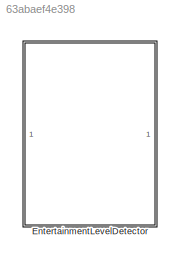
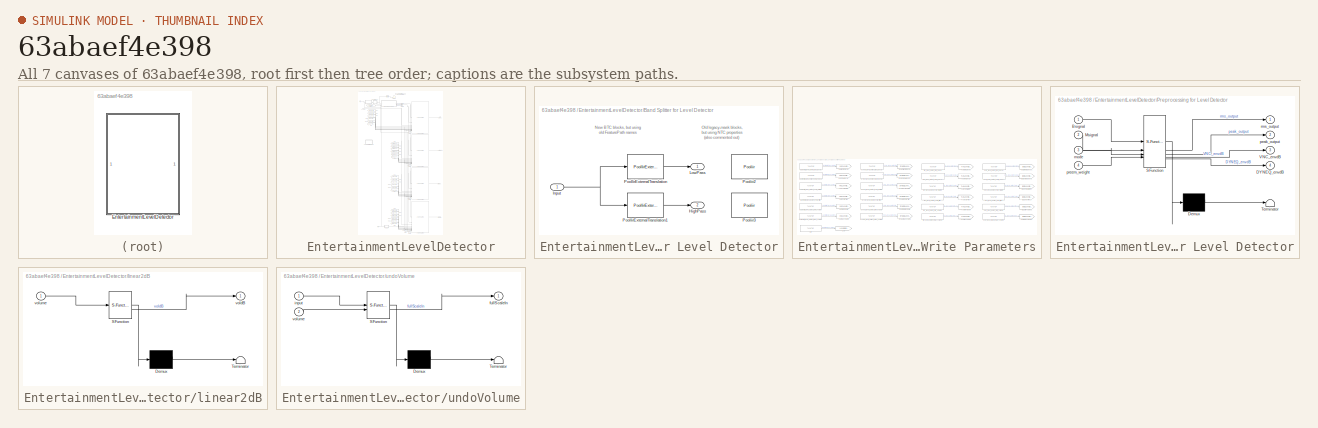
[diagram: thumbnail index - all 7 canvases of the model, root first then tree order]
MODEL slx_63abaef4e398
KIND library
CONFIG AbsTol = auto
CONFIG EnableMultiTasking = off
CONFIG FixedStep = auto
CONFIG MaxStep = auto
CONFIG MinStep = auto
CONFIG RelTol = 1e-3
CONFIG SampleTimeConstraint = Unconstrained
CONFIG SolverName = VariableStepAuto
CONFIG StartTime = 0.0
CONFIG StopTime = 10.0
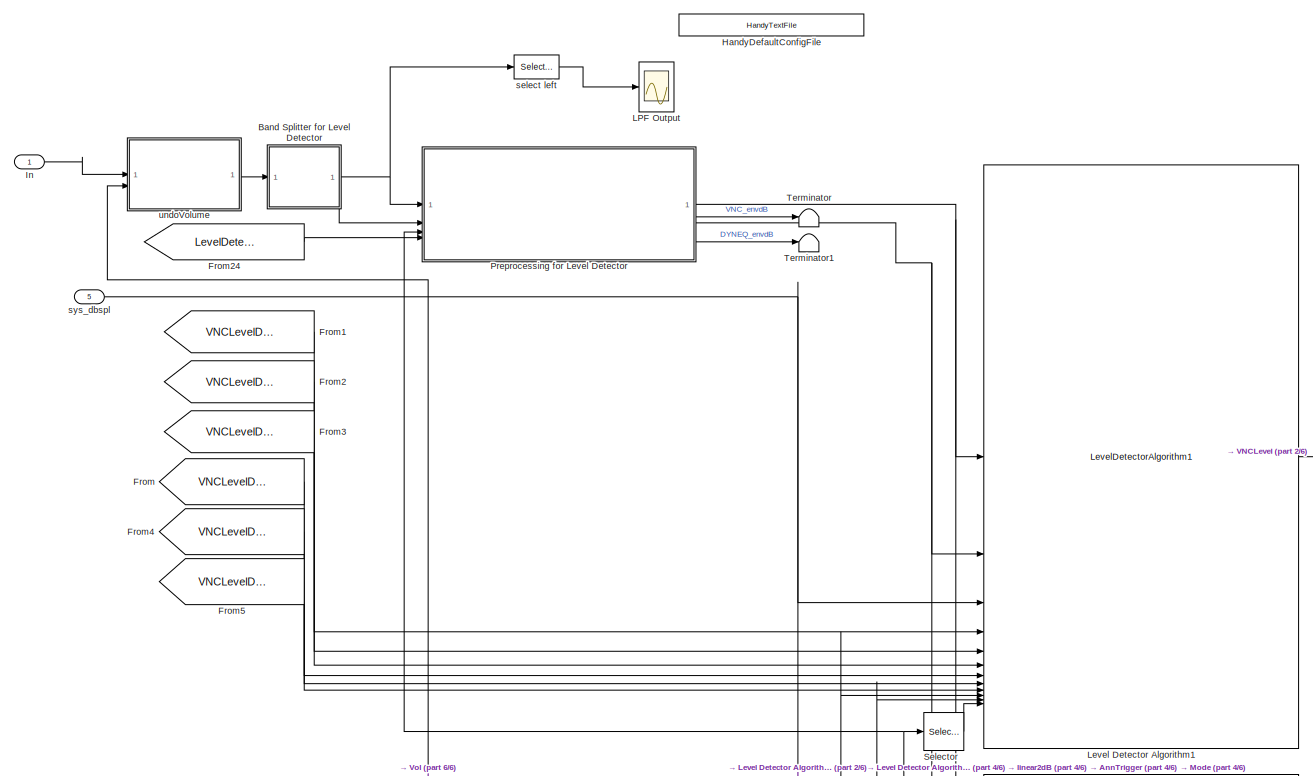
[diagram: EntertainmentLevelDetector - part 1/6, full width, top band]
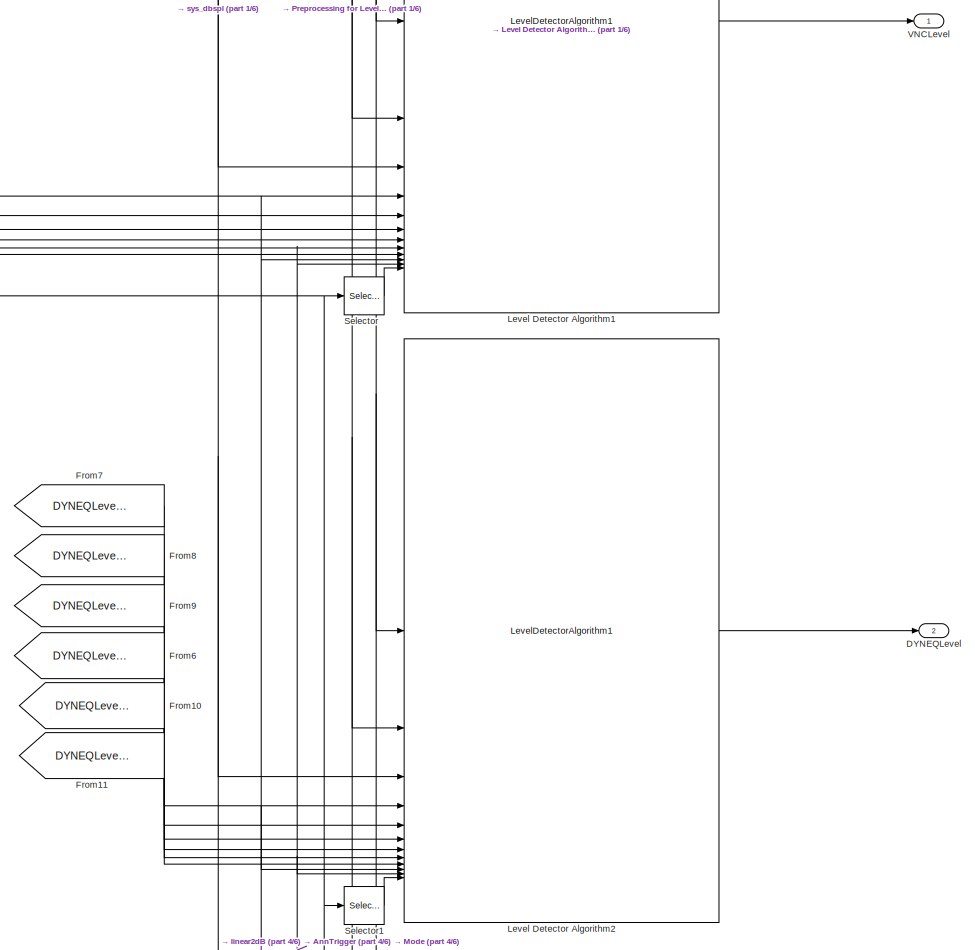
[diagram: EntertainmentLevelDetector - part 2/6, middle right region]
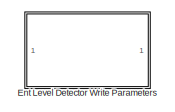
[diagram: EntertainmentLevelDetector - part 3/6, middle left region]
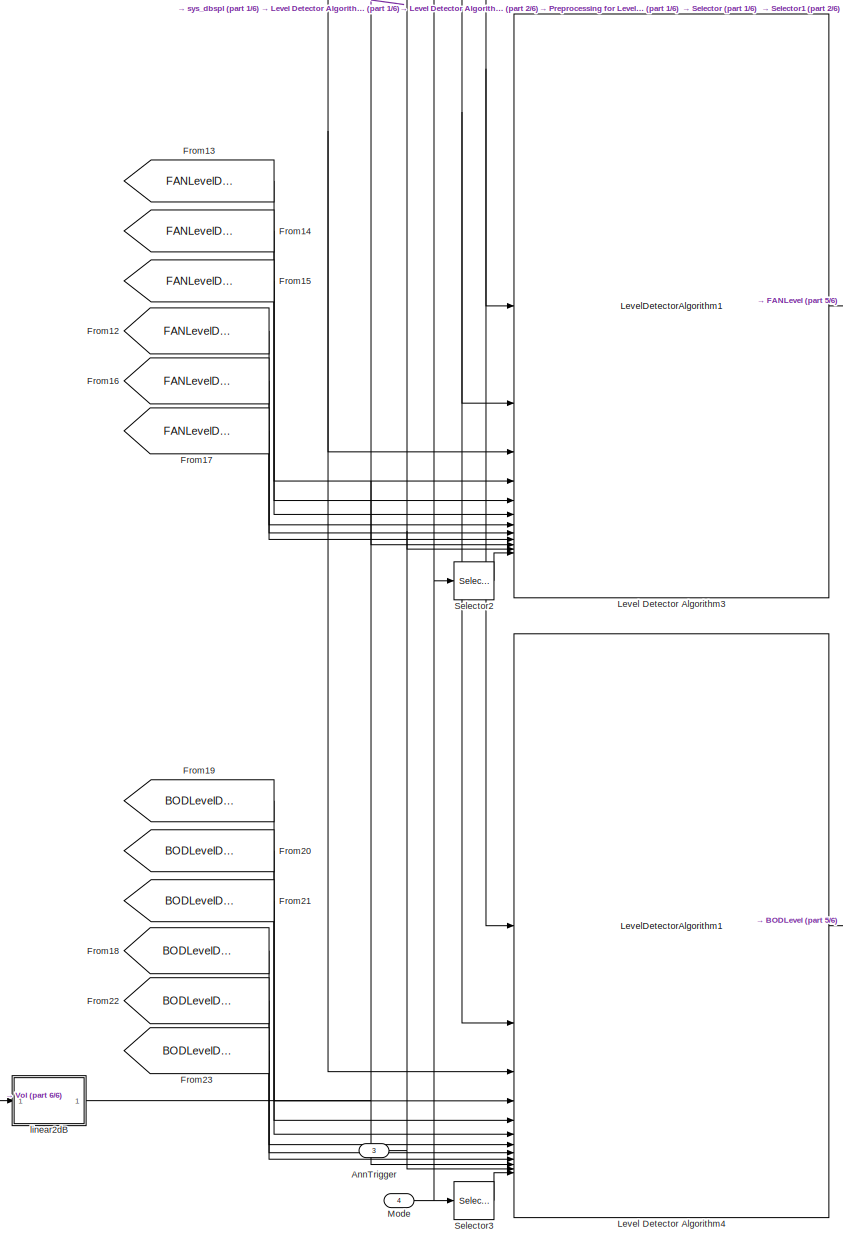
[diagram: EntertainmentLevelDetector - part 4/6, bottom center region]
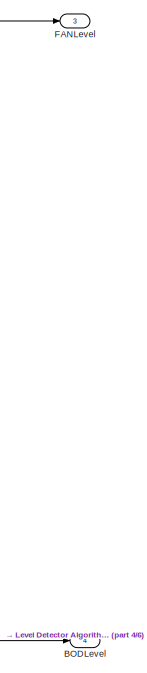
[diagram: EntertainmentLevelDetector - part 5/6, bottom right region]
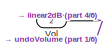
[diagram: EntertainmentLevelDetector - part 6/6, bottom left region]
BLOCK [SubSystem] EntertainmentLevelDetector
BLOCK [Inport] EntertainmentLevelDetector/AnnTrigger
  Port = 3
BLOCK [Outport] EntertainmentLevelDetector/BODLevel
  Port = 4
  VectorParamsAs1DForOutWhenUnconnected = off
BLOCK [SubSystem] EntertainmentLevelDetector/Band Splitter for Level Detector
BLOCK [Outport] EntertainmentLevelDetector/Band Splitter for Level Detector/HighPass
  Port = 2
  VectorParamsAs1DForOutWhenUnconnected = off
BLOCK [Inport] EntertainmentLevelDetector/Band Splitter for Level Detector/Input
BLOCK [Outport] EntertainmentLevelDetector/Band Splitter for Level Detector/LowPass
  VectorParamsAs1DForOutWhenUnconnected = off
BLOCK [Reference] EntertainmentLevelDetector/Band Splitter for Level Detector/PoolIirExternalTranslation  REF=PoolIirBtc/PoolIirExternalTranslation
  SourceBlock = PoolIirBtc/PoolIirExternalTranslation
  SourceProductName = Bose Blocklib
BLOCK [Reference] EntertainmentLevelDetector/Band Splitter for Level Detector/PoolIirExternalTranslation1  REF=PoolIirBtc/PoolIirExternalTranslation
  SourceBlock = PoolIirBtc/PoolIirExternalTranslation
  SourceProductName = Bose Blocklib
BLOCK [Reference] EntertainmentLevelDetector/Band Splitter for Level Detector/Pooliir2  REF=PooliirLib/Pooliir
  Commented = on
  SourceBlock = PooliirLib/Pooliir
BLOCK [Reference] EntertainmentLevelDetector/Band Splitter for Level Detector/Pooliir3  REF=PooliirLib/Pooliir
  Commented = on
  SourceBlock = PooliirLib/Pooliir
BLOCK [Outport] EntertainmentLevelDetector/DYNEQLevel
  Port = 2
  VectorParamsAs1DForOutWhenUnconnected = off
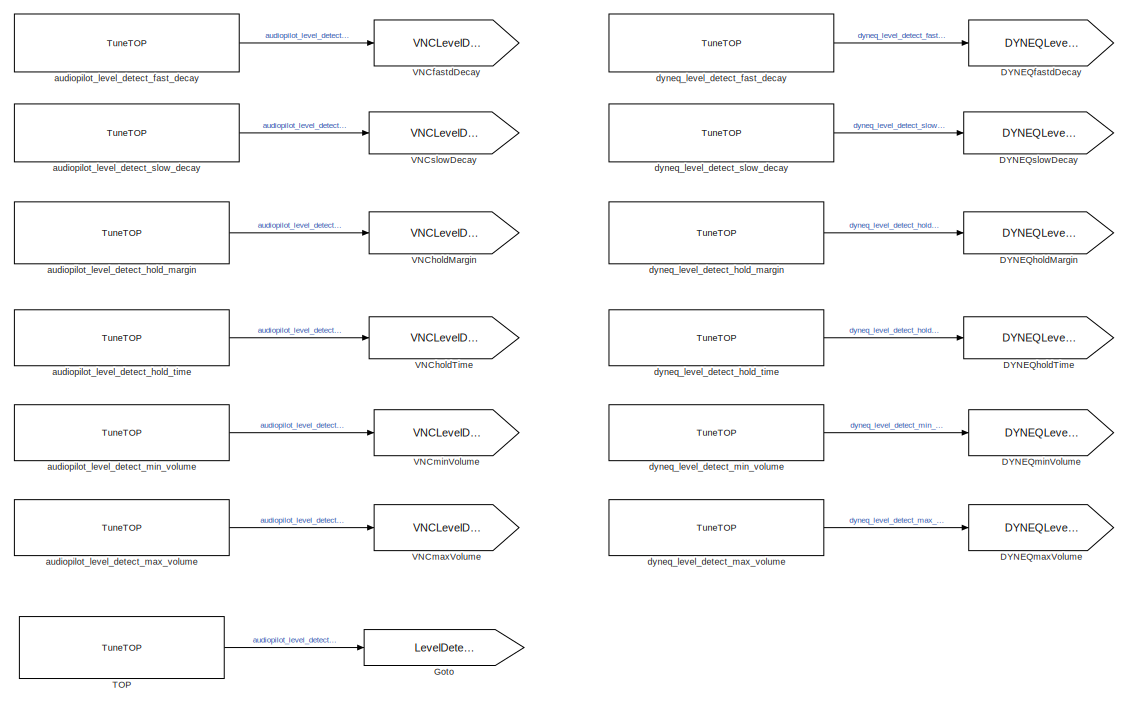
[diagram: EntertainmentLevelDetector/Ent Level Detector Write Parameters - part 1/2, left side, full height]
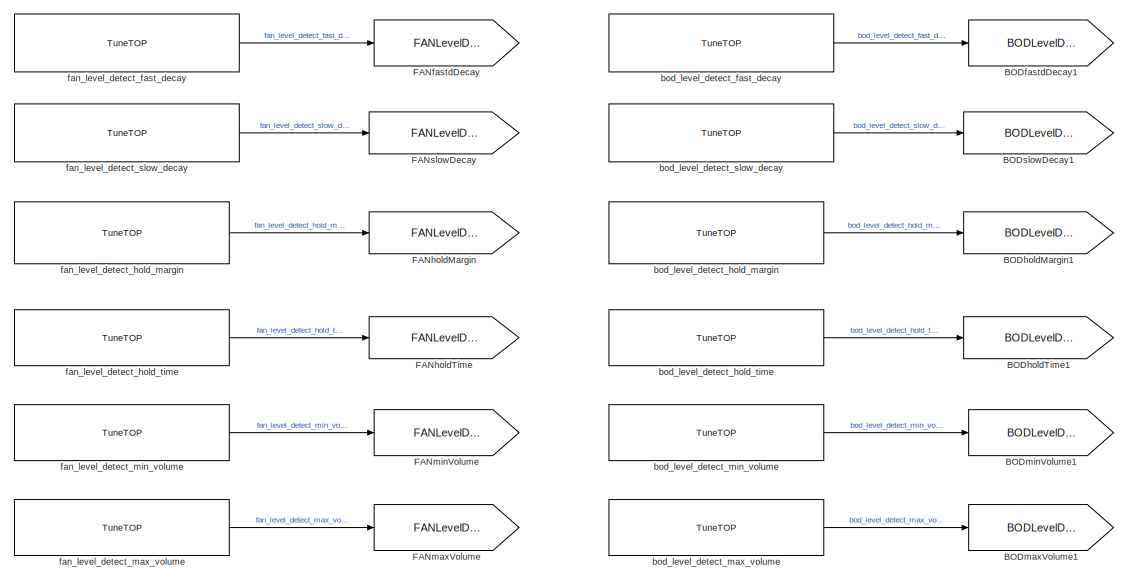
[diagram: EntertainmentLevelDetector/Ent Level Detector Write Parameters - part 2/2, right side, full height]
BLOCK [SubSystem] EntertainmentLevelDetector/Ent Level Detector Write Parameters
BLOCK [Goto] EntertainmentLevelDetector/Ent Level Detector Write Parameters/ BODfastdDecay1
  GotoTag = BODLevelDetectFastDecay
  TagVisibility = global
BLOCK [Goto] EntertainmentLevelDetector/Ent Level Detector Write Parameters/ BODholdMargin1
  GotoTag = BODLevelDetectHoldMargin
  TagVisibility = global
BLOCK [Goto] EntertainmentLevelDetector/Ent Level Detector Write Parameters/ BODholdTime1
  GotoTag = BODLevelDetectHoldTime
  TagVisibility = global
BLOCK [Goto] EntertainmentLevelDetector/Ent Level Detector Write Parameters/ BODmaxVolume1
  GotoTag = BODLevelDetectMaxVolume
  TagVisibility = global
BLOCK [Goto] EntertainmentLevelDetector/Ent Level Detector Write Parameters/ BODminVolume1
  GotoTag = BODLevelDetectMinVolume
  TagVisibility = global
BLOCK [Goto] EntertainmentLevelDetector/Ent Level Detector Write Parameters/ BODslowDecay1
  GotoTag = BODLevelDetectSlowDecay
  TagVisibility = global
BLOCK [Goto] EntertainmentLevelDetector/Ent Level Detector Write Parameters/ DYNEQfastdDecay
  GotoTag = DYNEQLevelDetectFastDecay
  TagVisibility = global
BLOCK [Goto] EntertainmentLevelDetector/Ent Level Detector Write Parameters/ DYNEQholdMargin
  GotoTag = DYNEQLevelDetectHoldMargin
  TagVisibility = global
BLOCK [Goto] EntertainmentLevelDetector/Ent Level Detector Write Parameters/ DYNEQholdTime
  GotoTag = DYNEQLevelDetectHoldTime
  TagVisibility = global
BLOCK [Goto] EntertainmentLevelDetector/Ent Level Detector Write Parameters/ DYNEQmaxVolume
  GotoTag = DYNEQLevelDetectMaxVolume
  TagVisibility = global
BLOCK [Goto] EntertainmentLevelDetector/Ent Level Detector Write Parameters/ DYNEQminVolume
  GotoTag = DYNEQLevelDetectMinVolume
  TagVisibility = global
BLOCK [Goto] EntertainmentLevelDetector/Ent Level Detector Write Parameters/ DYNEQslowDecay
  GotoTag = DYNEQLevelDetectSlowDecay
  TagVisibility = global
BLOCK [Goto] EntertainmentLevelDetector/Ent Level Detector Write Parameters/ FANfastdDecay
  GotoTag = FANLevelDetectFastDecay
  TagVisibility = global
BLOCK [Goto] EntertainmentLevelDetector/Ent Level Detector Write Parameters/ FANholdMargin
  GotoTag = FANLevelDetectHoldMargin
  TagVisibility = global
BLOCK [Goto] EntertainmentLevelDetector/Ent Level Detector Write Parameters/ FANholdTime
  GotoTag = FANLevelDetectHoldTime
  TagVisibility = global
BLOCK [Goto] EntertainmentLevelDetector/Ent Level Detector Write Parameters/ FANmaxVolume
  GotoTag = FANLevelDetectMaxVolume
  TagVisibility = global
BLOCK [Goto] EntertainmentLevelDetector/Ent Level Detector Write Parameters/ FANminVolume
  GotoTag = FANLevelDetectMinVolume
  TagVisibility = global
BLOCK [Goto] EntertainmentLevelDetector/Ent Level Detector Write Parameters/ FANslowDecay
  GotoTag = FANLevelDetectSlowDecay
  TagVisibility = global
BLOCK [Goto] EntertainmentLevelDetector/Ent Level Detector Write Parameters/ VNCfastdDecay
  GotoTag = VNCLevelDetectFastDecay
  TagVisibility = global
BLOCK [Goto] EntertainmentLevelDetector/Ent Level Detector Write Parameters/ VNCholdMargin
  GotoTag = VNCLevelDetectHoldMargin
  TagVisibility = global
BLOCK [Goto] EntertainmentLevelDetector/Ent Level Detector Write Parameters/ VNCholdTime 
  GotoTag = VNCLevelDetectHoldTime
  TagVisibility = global
BLOCK [Goto] EntertainmentLevelDetector/Ent Level Detector Write Parameters/ VNCmaxVolume
  GotoTag = VNCLevelDetectMaxVolume
  TagVisibility = global
BLOCK [Goto] EntertainmentLevelDetector/Ent Level Detector Write Parameters/ VNCminVolume
  GotoTag = VNCLevelDetectMinVolume
  TagVisibility = global
BLOCK [Goto] EntertainmentLevelDetector/Ent Level Detector Write Parameters/ VNCslowDecay
  GotoTag = VNCLevelDetectSlowDecay
  TagVisibility = global
BLOCK [Goto] EntertainmentLevelDetector/Ent Level Detector Write Parameters/Goto
  GotoTag = LevelDetectPreemWeight
  TagVisibility = global
BLOCK [Reference] EntertainmentLevelDetector/Ent Level Detector Write Parameters/TOP  REF=TuneVar/TuneTOP
  SourceBlock = TuneVar/TuneTOP
  SourceProductName = Bose Talaria
  SourceType = Talaria Trivial Tune TOP
BLOCK [Reference] EntertainmentLevelDetector/Ent Level Detector Write Parameters/audiopilot_level_detect_fast_decay  REF=TuneVar/TuneTOP
  SourceBlock = TuneVar/TuneTOP
  SourceProductName = Bose Talaria
  SourceType = Talaria Trivial Tune TOP
BLOCK [Reference] EntertainmentLevelDetector/Ent Level Detector Write Parameters/audiopilot_level_detect_hold_margin  REF=TuneVar/TuneTOP
  SourceBlock = TuneVar/TuneTOP
  SourceProductName = Bose Talaria
  SourceType = Talaria Trivial Tune TOP
BLOCK [Reference] EntertainmentLevelDetector/Ent Level Detector Write Parameters/audiopilot_level_detect_hold_time  REF=TuneVar/TuneTOP
  SourceBlock = TuneVar/TuneTOP
  SourceProductName = Bose Talaria
  SourceType = Talaria Trivial Tune TOP
BLOCK [Reference] EntertainmentLevelDetector/Ent Level Detector Write Parameters/audiopilot_level_detect_max_volume  REF=TuneVar/TuneTOP
  SourceBlock = TuneVar/TuneTOP
  SourceProductName = Bose Talaria
  SourceType = Talaria Trivial Tune TOP
BLOCK [Reference] EntertainmentLevelDetector/Ent Level Detector Write Parameters/audiopilot_level_detect_min_volume  REF=TuneVar/TuneTOP
  SourceBlock = TuneVar/TuneTOP
  SourceProductName = Bose Talaria
  SourceType = Talaria Trivial Tune TOP
BLOCK [Reference] EntertainmentLevelDetector/Ent Level Detector Write Parameters/audiopilot_level_detect_slow_decay  REF=TuneVar/TuneTOP
  SourceBlock = TuneVar/TuneTOP
  SourceProductName = Bose Talaria
  SourceType = Talaria Trivial Tune TOP
BLOCK [Reference] EntertainmentLevelDetector/Ent Level Detector Write Parameters/bod_level_detect_fast_decay  REF=TuneVar/TuneTOP
  SourceBlock = TuneVar/TuneTOP
  SourceProductName = Bose Talaria
  SourceType = Talaria Trivial Tune TOP
BLOCK [Reference] EntertainmentLevelDetector/Ent Level Detector Write Parameters/bod_level_detect_hold_margin  REF=TuneVar/TuneTOP
  SourceBlock = TuneVar/TuneTOP
  SourceProductName = Bose Talaria
  SourceType = Talaria Trivial Tune TOP
BLOCK [Reference] EntertainmentLevelDetector/Ent Level Detector Write Parameters/bod_level_detect_hold_time  REF=TuneVar/TuneTOP
  SourceBlock = TuneVar/TuneTOP
  SourceProductName = Bose Talaria
  SourceType = Talaria Trivial Tune TOP
BLOCK [Reference] EntertainmentLevelDetector/Ent Level Detector Write Parameters/bod_level_detect_max_volume  REF=TuneVar/TuneTOP
  SourceBlock = TuneVar/TuneTOP
  SourceProductName = Bose Talaria
  SourceType = Talaria Trivial Tune TOP
BLOCK [Reference] EntertainmentLevelDetector/Ent Level Detector Write Parameters/bod_level_detect_min_volume  REF=TuneVar/TuneTOP
  SourceBlock = TuneVar/TuneTOP
  SourceProductName = Bose Talaria
  SourceType = Talaria Trivial Tune TOP
BLOCK [Reference] EntertainmentLevelDetector/Ent Level Detector Write Parameters/bod_level_detect_slow_decay  REF=TuneVar/TuneTOP
  SourceBlock = TuneVar/TuneTOP
  SourceProductName = Bose Talaria
  SourceType = Talaria Trivial Tune TOP
BLOCK [Reference] EntertainmentLevelDetector/Ent Level Detector Write Parameters/dyneq_level_detect_fast_decay  REF=TuneVar/TuneTOP
  SourceBlock = TuneVar/TuneTOP
  SourceProductName = Bose Talaria
  SourceType = Talaria Trivial Tune TOP
BLOCK [Reference] EntertainmentLevelDetector/Ent Level Detector Write Parameters/dyneq_level_detect_hold_margin  REF=TuneVar/TuneTOP
  SourceBlock = TuneVar/TuneTOP
  SourceProductName = Bose Talaria
  SourceType = Talaria Trivial Tune TOP
BLOCK [Reference] EntertainmentLevelDetector/Ent Level Detector Write Parameters/dyneq_level_detect_hold_time  REF=TuneVar/TuneTOP
  SourceBlock = TuneVar/TuneTOP
  SourceProductName = Bose Talaria
  SourceType = Talaria Trivial Tune TOP
BLOCK [Reference] EntertainmentLevelDetector/Ent Level Detector Write Parameters/dyneq_level_detect_max_volume  REF=TuneVar/TuneTOP
  SourceBlock = TuneVar/TuneTOP
  SourceProductName = Bose Talaria
  SourceType = Talaria Trivial Tune TOP
BLOCK [Reference] EntertainmentLevelDetector/Ent Level Detector Write Parameters/dyneq_level_detect_min_volume  REF=TuneVar/TuneTOP
  SourceBlock = TuneVar/TuneTOP
  SourceProductName = Bose Talaria
  SourceType = Talaria Trivial Tune TOP
BLOCK [Reference] EntertainmentLevelDetector/Ent Level Detector Write Parameters/dyneq_level_detect_slow_decay  REF=TuneVar/TuneTOP
  SourceBlock = TuneVar/TuneTOP
  SourceProductName = Bose Talaria
  SourceType = Talaria Trivial Tune TOP
BLOCK [Reference] EntertainmentLevelDetector/Ent Level Detector Write Parameters/fan_level_detect_fast_decay  REF=TuneVar/TuneTOP
  SourceBlock = TuneVar/TuneTOP
  SourceProductName = Bose Talaria
  SourceType = Talaria Trivial Tune TOP
BLOCK [Reference] EntertainmentLevelDetector/Ent Level Detector Write Parameters/fan_level_detect_hold_margin  REF=TuneVar/TuneTOP
  SourceBlock = TuneVar/TuneTOP
  SourceProductName = Bose Talaria
  SourceType = Talaria Trivial Tune TOP
BLOCK [Reference] EntertainmentLevelDetector/Ent Level Detector Write Parameters/fan_level_detect_hold_time  REF=TuneVar/TuneTOP
  SourceBlock = TuneVar/TuneTOP
  SourceProductName = Bose Talaria
  SourceType = Talaria Trivial Tune TOP
BLOCK [Reference] EntertainmentLevelDetector/Ent Level Detector Write Parameters/fan_level_detect_max_volume  REF=TuneVar/TuneTOP
  SourceBlock = TuneVar/TuneTOP
  SourceProductName = Bose Talaria
  SourceType = Talaria Trivial Tune TOP
BLOCK [Reference] EntertainmentLevelDetector/Ent Level Detector Write Parameters/fan_level_detect_min_volume  REF=TuneVar/TuneTOP
  SourceBlock = TuneVar/TuneTOP
  SourceProductName = Bose Talaria
  SourceType = Talaria Trivial Tune TOP
BLOCK [Reference] EntertainmentLevelDetector/Ent Level Detector Write Parameters/fan_level_detect_slow_decay  REF=TuneVar/TuneTOP
  SourceBlock = TuneVar/TuneTOP
  SourceProductName = Bose Talaria
  SourceType = Talaria Trivial Tune TOP
BLOCK [Outport] EntertainmentLevelDetector/FANLevel
  Port = 3
  VectorParamsAs1DForOutWhenUnconnected = off
BLOCK [From] EntertainmentLevelDetector/From
  GotoTag = VNCLevelDetectFastDecay
  TagVisibility = global
BLOCK [From] EntertainmentLevelDetector/From1
  GotoTag = VNCLevelDetectSlowDecay
  TagVisibility = global
BLOCK [From] EntertainmentLevelDetector/From10
  GotoTag = DYNEQLevelDetectMinVolume
  TagVisibility = global
BLOCK [From] EntertainmentLevelDetector/From11
  GotoTag = DYNEQLevelDetectMaxVolume
  TagVisibility = global
BLOCK [From] EntertainmentLevelDetector/From12
  GotoTag = FANLevelDetectFastDecay
  TagVisibility = global
BLOCK [From] EntertainmentLevelDetector/From13
  GotoTag = FANLevelDetectSlowDecay
  TagVisibility = global
BLOCK [From] EntertainmentLevelDetector/From14
  GotoTag = FANLevelDetectHoldMargin
  TagVisibility = global
BLOCK [From] EntertainmentLevelDetector/From15
  GotoTag = FANLevelDetectHoldTime
  TagVisibility = global
BLOCK [From] EntertainmentLevelDetector/From16
  GotoTag = FANLevelDetectMinVolume
  TagVisibility = global
BLOCK [From] EntertainmentLevelDetector/From17
  GotoTag = FANLevelDetectMaxVolume
  TagVisibility = global
BLOCK [From] EntertainmentLevelDetector/From18
  GotoTag = BODLevelDetectFastDecay
  TagVisibility = global
BLOCK [From] EntertainmentLevelDetector/From19
  GotoTag = BODLevelDetectSlowDecay
  TagVisibility = global
BLOCK [From] EntertainmentLevelDetector/From2
  GotoTag = VNCLevelDetectHoldMargin
  TagVisibility = global
BLOCK [From] EntertainmentLevelDetector/From20
  GotoTag = BODLevelDetectHoldMargin
  TagVisibility = global
BLOCK [From] EntertainmentLevelDetector/From21
  GotoTag = BODLevelDetectHoldTime
  TagVisibility = global
BLOCK [From] EntertainmentLevelDetector/From22
  GotoTag = BODLevelDetectMinVolume
  TagVisibility = global
BLOCK [From] EntertainmentLevelDetector/From23
  GotoTag = BODLevelDetectMaxVolume
  TagVisibility = global
BLOCK [From] EntertainmentLevelDetector/From24
  GotoTag = LevelDetectPreemWeight
BLOCK [From] EntertainmentLevelDetector/From3
  GotoTag = VNCLevelDetectHoldTime
  TagVisibility = global
BLOCK [From] EntertainmentLevelDetector/From4
  GotoTag = VNCLevelDetectMinVolume
  TagVisibility = global
BLOCK [From] EntertainmentLevelDetector/From5
  GotoTag = VNCLevelDetectMaxVolume
  TagVisibility = global
BLOCK [From] EntertainmentLevelDetector/From6
  GotoTag = DYNEQLevelDetectFastDecay
  TagVisibility = global
BLOCK [From] EntertainmentLevelDetector/From7
  GotoTag = DYNEQLevelDetectSlowDecay
  TagVisibility = global
BLOCK [From] EntertainmentLevelDetector/From8
  GotoTag = DYNEQLevelDetectHoldMargin
  TagVisibility = global
BLOCK [From] EntertainmentLevelDetector/From9
  GotoTag = DYNEQLevelDetectHoldTime
  TagVisibility = global
BLOCK [Reference] EntertainmentLevelDetector/HandyDefaultConfigFile  REF=HandyTextFile/HandyTextFile
  SourceBlock = HandyTextFile/HandyTextFile
  SourceProductName = Bose Talaria
  SourceType = Talaria Handy Text File
BLOCK [Inport] EntertainmentLevelDetector/In
BLOCK [Scope] EntertainmentLevelDetector/LPF Output
  DefaultConfigurationName = spbscopes.TimeScopeBlockCfg
  Floating = off
  NumInputPorts = 1
  ScopeSpecificationString = spbscopes.TimeScopeBlockCfg('CurrentConfiguration', extmgr.ConfigurationSet(extmgr.Configuration('Core','General UI',true),extmgr.Configuration('Core','Source UI',true),extmgr.Configuration('Sources','WiredSimulink',true,'DataLoggingLimitDataPoints',true,'DataLoggingDecimateData',true,'DataLoggingDecimation','1','DataLoggingSaveFormat','Array'),extmgr.Configuration('Visuals','Time Domain',true,'Di...<+1562ch>
BLOCK [Reference] EntertainmentLevelDetector/Level Detector Algorithm1  REF=LevelDetectorLibraryLib/LevelDetectorAlgorithm1
  SourceBlock = LevelDetectorLibraryLib/LevelDetectorAlgorithm1
BLOCK [Reference] EntertainmentLevelDetector/Level Detector Algorithm2  REF=LevelDetectorLibraryLib/LevelDetectorAlgorithm1
  SourceBlock = LevelDetectorLibraryLib/LevelDetectorAlgorithm1
BLOCK [Reference] EntertainmentLevelDetector/Level Detector Algorithm3  REF=LevelDetectorLibraryLib/LevelDetectorAlgorithm1
  SourceBlock = LevelDetectorLibraryLib/LevelDetectorAlgorithm1
BLOCK [Reference] EntertainmentLevelDetector/Level Detector Algorithm4  REF=LevelDetectorLibraryLib/LevelDetectorAlgorithm1
  SourceBlock = LevelDetectorLibraryLib/LevelDetectorAlgorithm1
BLOCK [Inport] EntertainmentLevelDetector/Mode
  Port = 4
BLOCK [SubSystem] EntertainmentLevelDetector/Preprocessing for Level Detector
  ErrorFcn = Stateflow.Translate.translate
  PermitHierarchicalResolution = ExplicitOnly
  SFBlockType = MATLAB Function
  TreatAsAtomicUnit = on
BLOCK [Demux] EntertainmentLevelDetector/Preprocessing for Level Detector/ Demux 
  Outputs = 1
BLOCK [S-Function] EntertainmentLevelDetector/Preprocessing for Level Detector/ SFunction 
  EnableBusSupport = off
  FunctionName = sf_sfun
  PortCounts = [4 5]
  SFcnIsStateOwnerBlock = off
  SFunctionDeploymentMode = off
  Tag = Stateflow S-Function 15
BLOCK [Terminator] EntertainmentLevelDetector/Preprocessing for Level Detector/ Terminator 
BLOCK [Inport] EntertainmentLevelDetector/Preprocessing for Level Detector/Bsignal
BLOCK [Outport] EntertainmentLevelDetector/Preprocessing for Level Detector/DYNEQ_envdB
  Port = 4
  VectorParamsAs1DForOutWhenUnconnected = off
BLOCK [Inport] EntertainmentLevelDetector/Preprocessing for Level Detector/Msignal
  Port = 2
BLOCK [Outport] EntertainmentLevelDetector/Preprocessing for Level Detector/VNC_envdB
  Port = 3
  VectorParamsAs1DForOutWhenUnconnected = off
BLOCK [Inport] EntertainmentLevelDetector/Preprocessing for Level Detector/mode
  Port = 3
BLOCK [Outport] EntertainmentLevelDetector/Preprocessing for Level Detector/peak_output
  Port = 2
  VectorParamsAs1DForOutWhenUnconnected = off
BLOCK [Inport] EntertainmentLevelDetector/Preprocessing for Level Detector/preem_weight
  Port = 4
BLOCK [Outport] EntertainmentLevelDetector/Preprocessing for Level Detector/rms_output
  VectorParamsAs1DForOutWhenUnconnected = off
BLOCK [Selector] EntertainmentLevelDetector/Selector
  IndexOptions = Index vector (dialog)
  Indices = [1]
  InputPortWidth = 4
  OutputSizes = 1
BLOCK [Selector] EntertainmentLevelDetector/Selector1
  IndexOptions = Index vector (dialog)
  Indices = [2]
  InputPortWidth = 4
  OutputSizes = 1
BLOCK [Selector] EntertainmentLevelDetector/Selector2
  IndexOptions = Index vector (dialog)
  Indices = [3]
  InputPortWidth = 4
  OutputSizes = 1
BLOCK [Selector] EntertainmentLevelDetector/Selector3
  IndexOptions = Index vector (dialog)
  Indices = [4]
  InputPortWidth = 4
  OutputSizes = 1
BLOCK [Terminator] EntertainmentLevelDetector/Terminator
BLOCK [Terminator] EntertainmentLevelDetector/Terminator1
BLOCK [Outport] EntertainmentLevelDetector/VNCLevel
  VectorParamsAs1DForOutWhenUnconnected = off
BLOCK [Inport] EntertainmentLevelDetector/Vol
  Port = 2
BLOCK [SubSystem] EntertainmentLevelDetector/linear2dB
  ErrorFcn = Stateflow.Translate.translate
  PermitHierarchicalResolution = ExplicitOnly
  SFBlockType = MATLAB Function
  TreatAsAtomicUnit = on
BLOCK [Demux] EntertainmentLevelDetector/linear2dB/ Demux 
  Outputs = 1
BLOCK [S-Function] EntertainmentLevelDetector/linear2dB/ SFunction 
  EnableBusSupport = off
  FunctionName = sf_sfun
  PortCounts = [1 2]
  SFcnIsStateOwnerBlock = off
  SFunctionDeploymentMode = off
  Tag = Stateflow S-Function 23
BLOCK [Terminator] EntertainmentLevelDetector/linear2dB/ Terminator 
BLOCK [Outport] EntertainmentLevelDetector/linear2dB/voldB
  VectorParamsAs1DForOutWhenUnconnected = off
BLOCK [Inport] EntertainmentLevelDetector/linear2dB/volume
BLOCK [Selector] EntertainmentLevelDetector/select left
  IndexOptions = Select all,Index vector (dialog)
  Indices = [1 3],1
  InputPortWidth = 3
  NumberOfDimensions = 2
  OutputSizes = 1,1
BLOCK [Inport] EntertainmentLevelDetector/sys_dbspl
  Port = 5
BLOCK [SubSystem] EntertainmentLevelDetector/undoVolume
  ErrorFcn = Stateflow.Translate.translate
  PermitHierarchicalResolution = ExplicitOnly
  SFBlockType = MATLAB Function
  TreatAsAtomicUnit = on
BLOCK [Demux] EntertainmentLevelDetector/undoVolume/ Demux 
  Outputs = 1
BLOCK [S-Function] EntertainmentLevelDetector/undoVolume/ SFunction 
  EnableBusSupport = off
  FunctionName = sf_sfun
  PortCounts = [2 2]
  SFcnIsStateOwnerBlock = off
  SFunctionDeploymentMode = off
  Tag = Stateflow S-Function 17
BLOCK [Terminator] EntertainmentLevelDetector/undoVolume/ Terminator 
BLOCK [Outport] EntertainmentLevelDetector/undoVolume/fullScaleIn
  VectorParamsAs1DForOutWhenUnconnected = off
BLOCK [Inport] EntertainmentLevelDetector/undoVolume/input
BLOCK [Inport] EntertainmentLevelDetector/undoVolume/volume
  Port = 2
ANNOTATION EntertainmentLevelDetector/Band Splitter for Level Detector: New BTC blocks, but using old FeaturePath names
ANNOTATION EntertainmentLevelDetector/Band Splitter for Level Detector: Old legacy-mask blocks, but using NTC properties (also commented out)
CHART EntertainmentLevelDetector/Preprocessing for Level Detector states=1 transitions=1
  STATE_LABEL 'eML_blk_kernel()'
  STATE_LABEL 'SCRIPT:\nfunction [rms_output, peak_output, VNC_envdB, DYNEQ_envdB] = preprocessWithPreemphasis(Bsignal, Msignal, mode, preem_weight)\n% Initialize RMS_MODE\nRMS_MODE = single(1.0);\n% Initialize modePeak\nmodePeak = sum(mode > RMS_MODE);\n% Initialize weight\nweight = preem_weight; %mid range weight vs bass\n% Computing currB\ncurrB = 10 * log10(max(mean(Bsignal .* Bsignal, 1)) + eps);\n% Computing currB\nc...<+877ch>'
CHART EntertainmentLevelDetector/undoVolume states=1 transitions=1
  STATE_LABEL 'eML_blk_kernel()'
  STATE_LABEL 'SCRIPT:\nfunction fullScaleIn = fcn(input, volume)\n% Initialize the parameters\nfullScaleIn = single(input/(volume + eps));'
CHART EntertainmentLevelDetector/linear2dB states=1 transitions=1
  STATE_LABEL 'eML_blk_kernel()'
  STATE_LABEL 'SCRIPT:\nfunction voldB = fcn(volume)\n% Compute voldB\nvoldB = single(20 * log10(volume + eps));\n'
CHART  states=0 transitions=0
CHART  states=0 transitions=0
CHART  states=0 transitions=0
